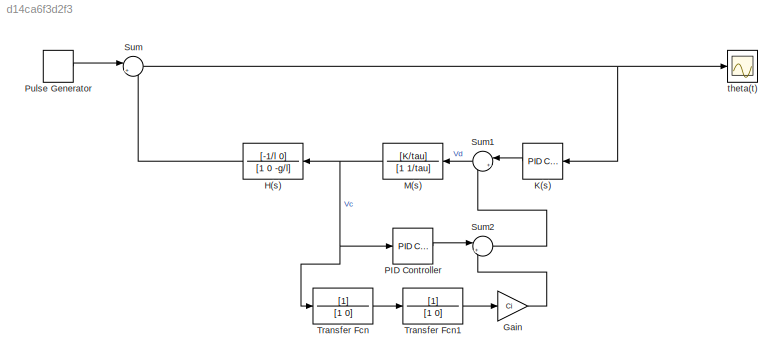
MODEL slx_d14ca6f3d2f3
KIND model
CONFIG AbsTol = auto
CONFIG EnableMultiTasking = off
CONFIG FixedStep = auto
CONFIG MaxStep = auto
CONFIG MinStep = auto
CONFIG RelTol = 1e-3
CONFIG SampleTimeConstraint = Unconstrained
CONFIG SolverName = VariableStepAuto
CONFIG StartTime = 0.0
CONFIG StopTime = 10
BLOCK [Gain] Gain
  Gain = Ci
BLOCK [TransferFcn] H(s)
  Denominator = [1 0 -g/l]
  Numerator = [-1/l 0]
BLOCK [Reference] K(s)  REF=slpidlib/PID Controller
  LibrarySourceBlock = simulink/Continuous/PID Controller
  SourceBlock = slpidlib/PID Controller
  SourceType = PID 1dof
BLOCK [TransferFcn] M(s)
  Denominator = [1 1/tau]
  Numerator = [K/tau]
BLOCK [Reference] PID Controller  REF=slpidlib/PID Controller
  LibrarySourceBlock = simulink/Continuous/PID Controller
  SourceBlock = slpidlib/PID Controller
  SourceType = PID 1dof
BLOCK [DiscretePulseGenerator] Pulse Generator
  Period = 300
  PulseType = Time based
BLOCK [Sum] Sum
  Inputs = |++
BLOCK [Sum] Sum1
  Inputs = |+-
BLOCK [Sum] Sum2
  Inputs = |++
BLOCK [TransferFcn] Transfer Fcn
  Denominator = [1 0]
BLOCK [TransferFcn] Transfer Fcn1
  Denominator = [1 0]
BLOCK [Scope] theta(t)
  Floating = off
  NumInputPorts = 1
  ScopeSpecificationString = Simulink.scopes.TimeScopeBlockCfg('CurrentConfiguration', extmgr.ConfigurationSet(extmgr.Configuration('Core','General UI',true),extmgr.Configuration('Core','Source UI',true),extmgr.Configuration('Sources','WiredSimulink',true),extmgr.Configuration('Visuals','Time Domain',true,'SerializedDisplays',{struct('MinYLimReal','-1.56139','MaxYLimReal','2.54184','YLabelReal','','MinYLimMag','0.00000','MaxY...<+1445ch>
LINE Gain:1 -> Sum2:2
LINE H(s):1 -> Sum:2
LINE K(s):1 -> Sum1:1
NET M(s):1 -> H(s):1, PID Controller:1, Transfer Fcn:1
LINE PID Controller:1 -> Sum2:1
LINE Pulse Generator:1 -> Sum:1
LINE Sum1:1 -> M(s):1
LINE Sum2:1 -> Sum1:2
NET Sum:1 -> K(s):1, theta(t):1
LINE Transfer Fcn1:1 -> Gain:1
LINE Transfer Fcn:1 -> Transfer Fcn1:1
note: NET lines group one-source signal fan-out (src -> all destinations, sorted); 1:1 wires keep LINE
